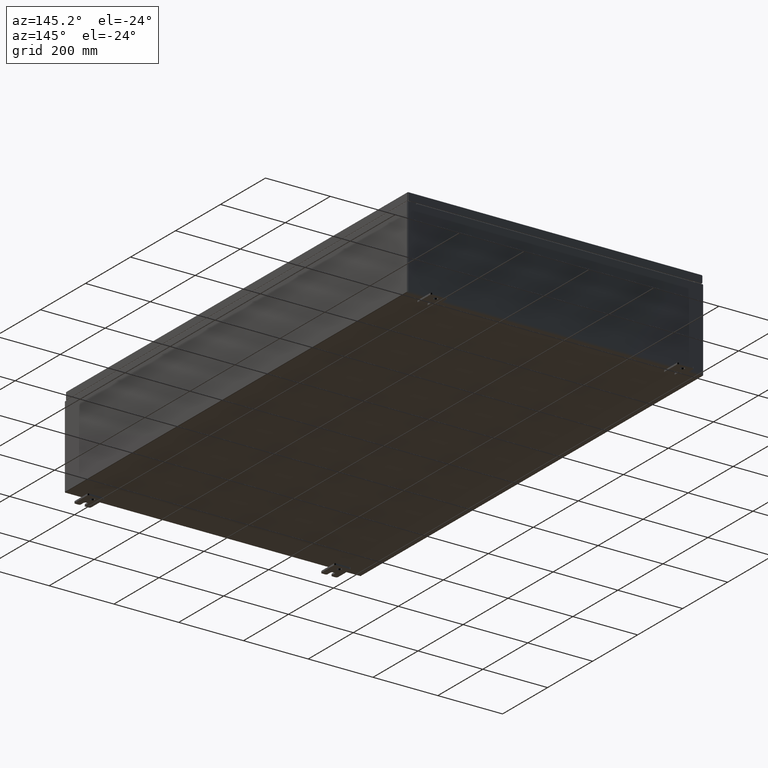
[diagram: clean part render]
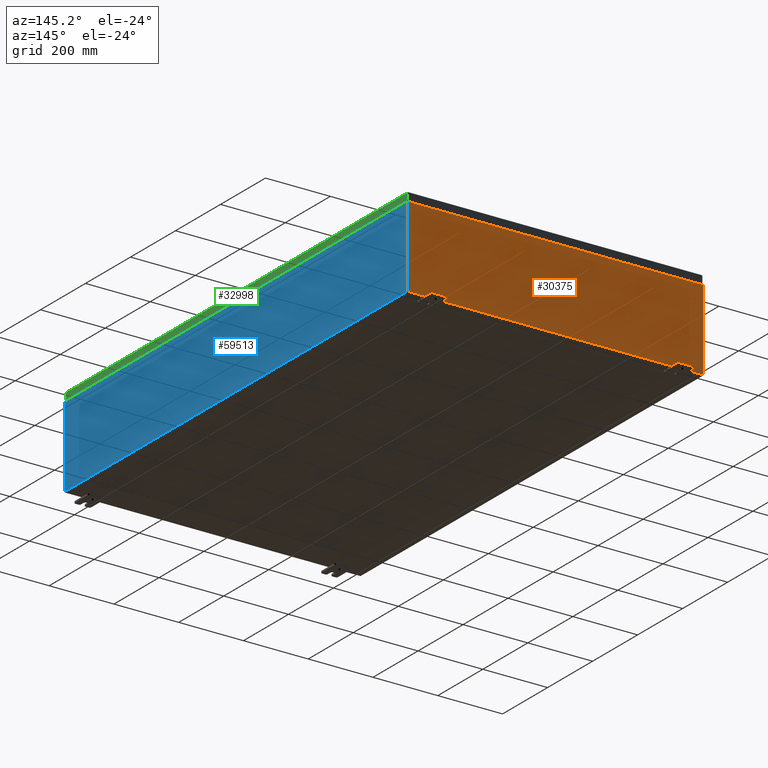
[diagram: same view with three faces highlighted in distinct colors, each labeled with its STEP entity id]
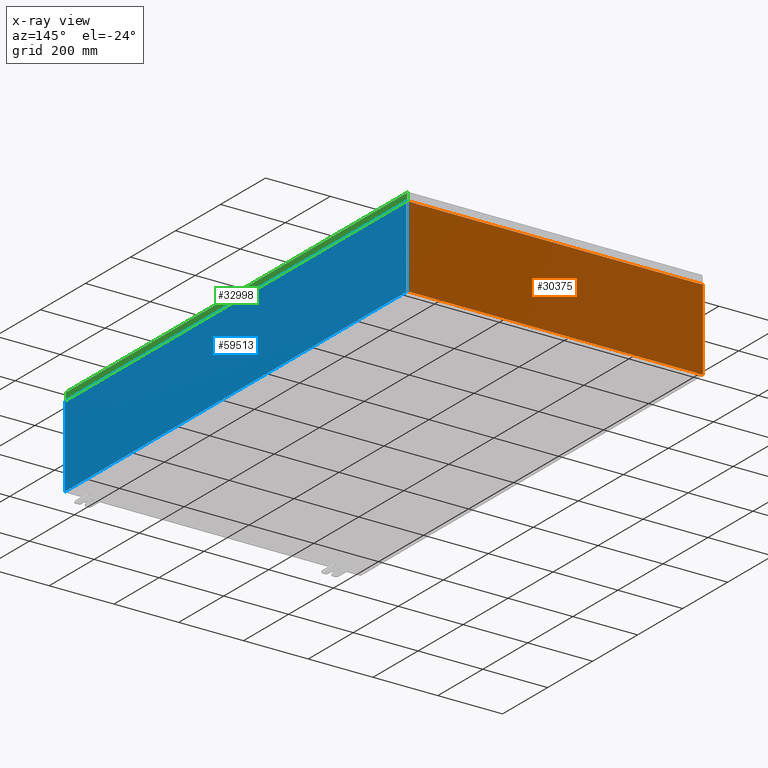
[diagram: x-ray of the same camera — body ghosted, the three highlighted faces saturated]
A machine part, auxiliary view with three faces highlighted in distinct colors.
The next image is the same camera in x-ray (body ghosted, the three faces saturated) — at least one of them is partly hidden behind the body in this view.
Their STEP definitions:

[orange] entity #30375 — the highlighted planar face has unit normal (0, -1, 0).
#244 = DIRECTION ( 'NONE',  ( 0.0000000000000000000, 0.0000000000000000000, -1.000000000000000000 ) ) ;
#430 = CARTESIAN_POINT ( 'NONE',  ( -16.90587499999999800, 0.0000000000000000000, 4.874950000000000100 ) ) ;
#682 = ORIENTED_EDGE ( 'NONE', *, *, #27018, .T. ) ;
#1021 = ORIENTED_EDGE ( 'NONE', *, *, #57641, .F. ) ;
#1743 = VECTOR ( 'NONE', #11958, 39.37007874015748100 ) ;
#2738 = LINE ( 'NONE', #51184, #29590 ) ;
#4131 = LINE ( 'NONE', #18016, #61019 ) ;
#4807 = VERTEX_POINT ( 'NONE', #43683 ) ;
#5879 = DIRECTION ( 'NONE',  ( 0.0000000000000000000, 0.0000000000000000000, -1.000000000000000000 ) ) ;
#6390 = CARTESIAN_POINT ( 'NONE',  ( 16.90587500000000200, 0.0000000000000000000, 4.874950000000000100 ) ) ;
#7542 = ORIENTED_EDGE ( 'NONE', *, *, #38059, .F. ) ;
#8225 = EDGE_CURVE ( 'NONE', #11051, #43048, #31559, .T. ) ;
#10060 = VECTOR ( 'NONE', #66156, 39.37007874015748100 ) ;
#10275 = CARTESIAN_POINT ( 'NONE',  ( -16.92454999999999600, 0.0000000000000000000, 4.925300000000000000 ) ) ;
#11051 = VERTEX_POINT ( 'NONE', #33704 ) ;
#11100 = PLANE ( 'NONE',  #21653 ) ;
#11782 = DIRECTION ( 'NONE',  ( 0.0000000000000000000, 0.0000000000000000000, -1.000000000000000000 ) ) ;
#11958 = DIRECTION ( 'NONE',  ( -1.000000000000000000, -0.0000000000000000000, -0.0000000000000000000 ) ) ;
#13172 = CARTESIAN_POINT ( 'NONE',  ( 16.92454999999957700, -0.0000000000000000000, -1.469244821010341400E-012 ) ) ;
#13229 = VECTOR ( 'NONE', #244, 39.37007874015748100 ) ;
#13272 = VERTEX_POINT ( 'NONE', #59862 ) ;
#13376 = ORIENTED_EDGE ( 'NONE', *, *, #40022, .F. ) ;
#14001 = ORIENTED_EDGE ( 'NONE', *, *, #35163, .T. ) ;
#15641 = DIRECTION ( 'NONE',  ( 1.000000000000000000, 0.0000000000000000000, 0.0000000000000000000 ) ) ;
#17195 = AXIS2_PLACEMENT_3D ( 'NONE', #430, #38005, #5879 ) ;
#17246 = VERTEX_POINT ( 'NONE', #30306 ) ;
#18016 = CARTESIAN_POINT ( 'NONE',  ( -16.92454999999999600, -0.0000000000000000000, 0.0000000000000000000 ) ) ;
#20188 = EDGE_CURVE ( 'NONE', #35445, #46533, #46948, .T. ) ;
#20456 = CARTESIAN_POINT ( 'NONE',  ( -17.92530000000000000, 0.0000000000000000000, 4.925300000000000000 ) ) ;
#20514 = DIRECTION ( 'NONE',  ( 1.000000000000000000, 0.0000000000000000000, 0.0000000000000000000 ) ) ;
#20859 = CARTESIAN_POINT ( 'NONE',  ( -16.88720000000000000, -7.171100983368691200E-016, 4.912300000000000100 ) ) ;
#20902 = LINE ( 'NONE', #31021, #31773 ) ;
#20928 = VERTEX_POINT ( 'NONE', #45210 ) ;
#21653 = AXIS2_PLACEMENT_3D ( 'NONE', #59250, #27259, #64572 ) ;
#21806 = EDGE_CURVE ( 'NONE', #17246, #41975, #24314, .T. ) ;
#22234 = EDGE_CURVE ( 'NONE', #50161, #43048, #69312, .T. ) ;
#22883 = VECTOR ( 'NONE', #15641, 39.37007874015748100 ) ;
#23369 = DIRECTION ( 'NONE',  ( 0.0000000000000000000, 0.0000000000000000000, 1.000000000000000000 ) ) ;
#23480 = CARTESIAN_POINT ( 'NONE',  ( -16.88720000000000000, -7.171100983368691200E-016, 4.912300000000000100 ) ) ;
#24314 = LINE ( 'NONE', #13172, #10060 ) ;
#24532 = DIRECTION ( 'NONE',  ( 0.0000000000000000000, 0.0000000000000000000, -1.000000000000000000 ) ) ;
#24553 = LINE ( 'NONE', #36951, #22883 ) ;
#26407 = CARTESIAN_POINT ( 'NONE',  ( -17.92530000000000000, 0.0000000000000000000, 4.925300000000000000 ) ) ;
#27018 = EDGE_CURVE ( 'NONE', #17246, #13272, #20902, .T. ) ;
#27259 = DIRECTION ( 'NONE',  ( 0.0000000000000000000, -1.000000000000000000, 0.0000000000000000000 ) ) ;
#27483 = LINE ( 'NONE', #64333, #13229 ) ;
#28518 = DIRECTION ( 'NONE',  ( 0.0000000000000000000, 0.0000000000000000000, 1.000000000000000000 ) ) ;
#29590 = VECTOR ( 'NONE', #24532, 39.37007874015748100 ) ;
#30306 = CARTESIAN_POINT ( 'NONE',  ( 16.92455000000000000, 0.0000000000000000000, 4.925300000000000000 ) ) ;
#30375 = ADVANCED_FACE ( 'NONE', ( #42578 ), #11100, .F. ) ;
#31021 = CARTESIAN_POINT ( 'NONE',  ( -17.92530000000000000, 0.0000000000000000000, 4.925300000000000000 ) ) ;
#31559 = LINE ( 'NONE', #40303, #45821 ) ;
#31773 = VECTOR ( 'NONE', #20514, 39.37007874015748100 ) ;
#33277 = CARTESIAN_POINT ( 'NONE',  ( -17.92530000000000000, 0.0000000000000000000, -4.925300000000000000 ) ) ;
#33704 = CARTESIAN_POINT ( 'NONE',  ( 16.88720000000000000, 0.0000000000000000000, 4.874950000000000100 ) ) ;
#33910 = ORIENTED_EDGE ( 'NONE', *, *, #22234, .T. ) ;
#35029 = ORIENTED_EDGE ( 'NONE', *, *, #67240, .T. ) ;
#35163 = EDGE_CURVE ( 'NONE', #46533, #42648, #58064, .T. ) ;
#35445 = VERTEX_POINT ( 'NONE', #39384 ) ;
#36579 = DIRECTION ( 'NONE',  ( 1.000000000000000000, 0.0000000000000000000, 0.0000000000000000000 ) ) ;
#36951 = CARTESIAN_POINT ( 'NONE',  ( -17.92530000000000000, 0.0000000000000000000, 4.925300000000000000 ) ) ;
#37984 = ORIENTED_EDGE ( 'NONE', *, *, #67486, .T. ) ;
#38005 = DIRECTION ( 'NONE',  ( -0.0000000000000000000, 1.000000000000000000, -0.0000000000000000000 ) ) ;
#38059 = EDGE_CURVE ( 'NONE', #4807, #46479, #4131, .T. ) ;
#38142 = EDGE_LOOP ( 'NONE', ( #7542, #51512, #13376, #33910, #57459, #1021, #50391, #682, #35029, #59685, #14001, #37984 ) ) ;
#39384 = CARTESIAN_POINT ( 'NONE',  ( 17.92530000000000000, 0.0000000000000000000, -4.925300000000000000 ) ) ;
#40022 = EDGE_CURVE ( 'NONE', #50161, #20928, #27483, .T. ) ;
#40303 = CARTESIAN_POINT ( 'NONE',  ( 16.88720000000000000, 0.0000000000000000000, 0.0000000000000000000 ) ) ;
#41100 = VECTOR ( 'NONE', #36579, 39.37007874015748100 ) ;
#41975 = VERTEX_POINT ( 'NONE', #63809 ) ;
#42248 = VECTOR ( 'NONE', #63624, 39.37007874015748100 ) ;
#42578 = FACE_OUTER_BOUND ( 'NONE', #38142, .T. ) ;
#42648 = VERTEX_POINT ( 'NONE', #26407 ) ;
#43048 = VERTEX_POINT ( 'NONE', #45329 ) ;
#43683 = CARTESIAN_POINT ( 'NONE',  ( -16.92454999999999600, 0.0000000000000000000, 4.874950000000000100 ) ) ;
#43904 = DIRECTION ( 'NONE',  ( -0.0000000000000000000, 1.000000000000000000, -0.0000000000000000000 ) ) ;
#45210 = CARTESIAN_POINT ( 'NONE',  ( -16.88720000000000000, -0.0000000000000000000, 4.874950000000000100 ) ) ;
#45329 = CARTESIAN_POINT ( 'NONE',  ( 16.88720000000000000, 0.0000000000000000000, 4.912300000000000100 ) ) ;
#45821 = VECTOR ( 'NONE', #28518, 39.37007874015748100 ) ;
#46479 = VERTEX_POINT ( 'NONE', #10275 ) ;
#46533 = VERTEX_POINT ( 'NONE', #58664 ) ;
#46948 = LINE ( 'NONE', #33277, #1743 ) ;
#47816 = CIRCLE ( 'NONE', #56490, 0.01867499999999949400 ) ;
#50161 = VERTEX_POINT ( 'NONE', #23480 ) ;
#50391 = ORIENTED_EDGE ( 'NONE', *, *, #21806, .F. ) ;
#51184 = CARTESIAN_POINT ( 'NONE',  ( 17.92530000000000000, 0.0000000000000000000, 4.925300000000000000 ) ) ;
#51512 = ORIENTED_EDGE ( 'NONE', *, *, #60934, .F. ) ;
#56490 = AXIS2_PLACEMENT_3D ( 'NONE', #6390, #43904, #11782 ) ;
#57459 = ORIENTED_EDGE ( 'NONE', *, *, #8225, .F. ) ;
#57641 = EDGE_CURVE ( 'NONE', #41975, #11051, #47816, .T. ) ;
#58064 = LINE ( 'NONE', #20456, #42248 ) ;
#58664 = CARTESIAN_POINT ( 'NONE',  ( -17.92530000000000000, 0.0000000000000000000, -4.925300000000000000 ) ) ;
#59250 = CARTESIAN_POINT ( 'NONE',  ( 0.0000000000000000000, 0.0000000000000000000, 0.0000000000000000000 ) ) ;
#59685 = ORIENTED_EDGE ( 'NONE', *, *, #20188, .T. ) ;
#59862 = CARTESIAN_POINT ( 'NONE',  ( 17.92530000000000000, 0.0000000000000000000, 4.925300000000000000 ) ) ;
#60934 = EDGE_CURVE ( 'NONE', #20928, #4807, #65076, .T. ) ;
#61019 = VECTOR ( 'NONE', #23369, 39.37007874015748100 ) ;
#63624 = DIRECTION ( 'NONE',  ( -0.0000000000000000000, -0.0000000000000000000, 1.000000000000000000 ) ) ;
#63809 = CARTESIAN_POINT ( 'NONE',  ( 16.92455000000000000, 0.0000000000000000000, 4.874950000000000100 ) ) ;
#64333 = CARTESIAN_POINT ( 'NONE',  ( -16.88720000000000000, -0.0000000000000000000, 0.0000000000000000000 ) ) ;
#64572 = DIRECTION ( 'NONE',  ( 0.0000000000000000000, -0.0000000000000000000, -1.000000000000000000 ) ) ;
#65076 = CIRCLE ( 'NONE', #17195, 0.01867499999999949400 ) ;
#66156 = DIRECTION ( 'NONE',  ( -8.681145560800009800E-014, 0.0000000000000000000, -1.000000000000000000 ) ) ;
#67240 = EDGE_CURVE ( 'NONE', #13272, #35445, #2738, .T. ) ;
#67486 = EDGE_CURVE ( 'NONE', #42648, #46479, #24553, .T. ) ;
#69312 = LINE ( 'NONE', #20859, #41100 ) ;

[blue] entity #59513 — the highlighted planar face has unit normal (-1, 0, 0).
#1584 = PLANE ( 'NONE',  #39135 ) ;
#3887 = CARTESIAN_POINT ( 'NONE',  ( 17.99999999999999600, -29.92530000000001100, 0.01299999999999984700 ) ) ;
#10059 = CARTESIAN_POINT ( 'NONE',  ( 17.99999999999999600, -29.92530000000001100, -6.367630515150755500E-014 ) ) ;
#12420 = DIRECTION ( 'NONE',  ( 3.523082860860887800E-015, 0.0000000000000000000, 1.000000000000000000 ) ) ;
#13473 = CARTESIAN_POINT ( 'NONE',  ( 18.00000000000003200, -29.92530000000001100, 9.837600000000000100 ) ) ;
#13556 = VERTEX_POINT ( 'NONE', #51130 ) ;
#14327 = VECTOR ( 'NONE', #20059, 39.37007874015748100 ) ;
#15299 = EDGE_LOOP ( 'NONE', ( #43472, #18920, #60532, #36713 ) ) ;
#15490 = DIRECTION ( 'NONE',  ( -3.523082860860888200E-015, 0.0000000000000000000, -1.000000000000000000 ) ) ;
#15607 = CARTESIAN_POINT ( 'NONE',  ( 18.00000000000003600, 29.92529999999999300, 9.837599999999993000 ) ) ;
#15885 = LINE ( 'NONE', #15607, #55155 ) ;
#18920 = ORIENTED_EDGE ( 'NONE', *, *, #25830, .T. ) ;
#19297 = LINE ( 'NONE', #10059, #46100 ) ;
#20059 = DIRECTION ( 'NONE',  ( -0.0000000000000000000, -1.000000000000000000, -0.0000000000000000000 ) ) ;
#25777 = CARTESIAN_POINT ( 'NONE',  ( 18.00000000000003600, 29.92529999999999300, 9.837599999999993000 ) ) ;
#25830 = EDGE_CURVE ( 'NONE', #43072, #47478, #19297, .T. ) ;
#27161 = EDGE_CURVE ( 'NONE', #40630, #43072, #15885, .T. ) ;
#28287 = LINE ( 'NONE', #68183, #37519 ) ;
#28353 = CARTESIAN_POINT ( 'NONE',  ( 17.99999999999999600, 0.0000000000000000000, -6.367630515150755500E-014 ) ) ;
#28561 = LINE ( 'NONE', #3887, #14327 ) ;
#36713 = ORIENTED_EDGE ( 'NONE', *, *, #40577, .T. ) ;
#37519 = VECTOR ( 'NONE', #57548, 39.37007874015748100 ) ;
#38530 = FACE_OUTER_BOUND ( 'NONE', #15299, .T. ) ;
#39135 = AXIS2_PLACEMENT_3D ( 'NONE', #28353, #44525, #12420 ) ;
#40577 = EDGE_CURVE ( 'NONE', #13556, #40630, #28287, .T. ) ;
#40630 = VERTEX_POINT ( 'NONE', #25777 ) ;
#43072 = VERTEX_POINT ( 'NONE', #13473 ) ;
#43472 = ORIENTED_EDGE ( 'NONE', *, *, #27161, .T. ) ;
#44525 = DIRECTION ( 'NONE',  ( -1.000000000000000000, 0.0000000000000000000, 3.523082860860887800E-015 ) ) ;
#46100 = VECTOR ( 'NONE', #15490, 39.37007874015748100 ) ;
#47478 = VERTEX_POINT ( 'NONE', #65167 ) ;
#48945 = EDGE_CURVE ( 'NONE', #13556, #47478, #28561, .T. ) ;
#51130 = CARTESIAN_POINT ( 'NONE',  ( 17.99999999999999600, 29.92529999999999300, 0.01299999999999984700 ) ) ;
#53234 = DIRECTION ( 'NONE',  ( -0.0000000000000000000, -1.000000000000000000, -0.0000000000000000000 ) ) ;
#55155 = VECTOR ( 'NONE', #53234, 39.37007874015748100 ) ;
#57548 = DIRECTION ( 'NONE',  ( 3.523082860860888200E-015, 0.0000000000000000000, 1.000000000000000000 ) ) ;
#59513 = ADVANCED_FACE ( 'NONE', ( #38530 ), #1584, .F. ) ;
#60532 = ORIENTED_EDGE ( 'NONE', *, *, #48945, .F. ) ;
#65167 = CARTESIAN_POINT ( 'NONE',  ( 17.99999999999999600, -29.92530000000001100, 0.01299999999999984300 ) ) ;
#68183 = CARTESIAN_POINT ( 'NONE',  ( 17.99999999999999600, 29.92529999999998900, -6.367630515150755500E-014 ) ) ;

[green] entity #32998 — the highlighted planar face has unit normal (1, 0, 0).
#1697 = DIRECTION ( 'NONE',  ( 2.532419924601866100E-015, 0.0000000000000000000, -1.000000000000000000 ) ) ;
#8378 = VECTOR ( 'NONE', #22981, 39.37007874015748100 ) ;
#8602 = VERTEX_POINT ( 'NONE', #36687 ) ;
#10333 = ORIENTED_EDGE ( 'NONE', *, *, #59747, .T. ) ;
#12697 = EDGE_LOOP ( 'NONE', ( #13163, #57383, #39544, #10333 ) ) ;
#13163 = ORIENTED_EDGE ( 'NONE', *, *, #37393, .F. ) ;
#13737 = DIRECTION ( 'NONE',  ( 0.0000000000000000000, -1.000000000000000000, 0.0000000000000000000 ) ) ;
#17556 = VECTOR ( 'NONE', #13737, 39.37007874015748100 ) ;
#18768 = VECTOR ( 'NONE', #36616, 39.37007874015748100 ) ;
#19221 = LINE ( 'NONE', #40446, #17556 ) ;
#20198 = AXIS2_PLACEMENT_3D ( 'NONE', #60424, #33857, #1697 ) ;
#22628 = LINE ( 'NONE', #23433, #8378 ) ;
#22981 = DIRECTION ( 'NONE',  ( -2.532419924601866100E-015, -6.982962677686269100E-015, 1.000000000000000000 ) ) ;
#23170 = DIRECTION ( 'NONE',  ( -2.532419924601866100E-015, -6.982962677686269100E-015, 1.000000000000000000 ) ) ;
#23433 = CARTESIAN_POINT ( 'NONE',  ( 17.93750000000000000, -29.84865786437626100, -0.07469999999999980800 ) ) ;
#28463 = PLANE ( 'NONE',  #20198 ) ;
#32806 = VERTEX_POINT ( 'NONE', #42101 ) ;
#32998 = ADVANCED_FACE ( 'NONE', ( #68147 ), #28463, .T. ) ;
#33857 = DIRECTION ( 'NONE',  ( 1.000000000000000000, 0.0000000000000000000, 2.532419924601866100E-015 ) ) ;
#36616 = DIRECTION ( 'NONE',  ( 0.0000000000000000000, -1.000000000000000000, 0.0000000000000000000 ) ) ;
#36687 = CARTESIAN_POINT ( 'NONE',  ( 17.93750000000000000, -29.84865786437626100, -0.08770000000000008300 ) ) ;
#37393 = EDGE_CURVE ( 'NONE', #59312, #8602, #22628, .T. ) ;
#39544 = ORIENTED_EDGE ( 'NONE', *, *, #47612, .T. ) ;
#40446 = CARTESIAN_POINT ( 'NONE',  ( 17.93750000000000000, 0.0000000000000000000, -0.08770000000000008300 ) ) ;
#42101 = CARTESIAN_POINT ( 'NONE',  ( 17.93750000000000000, 29.84865786437627800, -0.9376999999999997600 ) ) ;
#44515 = CARTESIAN_POINT ( 'NONE',  ( 17.93750000000000000, 29.84865786437627500, 2.541181598995237700E-013 ) ) ;
#47612 = EDGE_CURVE ( 'NONE', #32806, #58390, #51222, .T. ) ;
#49572 = VECTOR ( 'NONE', #23170, 39.37007874015748100 ) ;
#51222 = LINE ( 'NONE', #44515, #49572 ) ;
#54137 = EDGE_CURVE ( 'NONE', #32806, #59312, #59693, .T. ) ;
#57383 = ORIENTED_EDGE ( 'NONE', *, *, #54137, .F. ) ;
#58390 = VERTEX_POINT ( 'NONE', #63223 ) ;
#59312 = VERTEX_POINT ( 'NONE', #64741 ) ;
#59693 = LINE ( 'NONE', #68449, #18768 ) ;
#59747 = EDGE_CURVE ( 'NONE', #58390, #8602, #19221, .T. ) ;
#60424 = CARTESIAN_POINT ( 'NONE',  ( 17.93750000000000000, 0.0000000000000000000, 4.568609605355755400E-014 ) ) ;
#63223 = CARTESIAN_POINT ( 'NONE',  ( 17.93750000000000000, 29.84865786437627500, -0.08770000000000008300 ) ) ;
#64741 = CARTESIAN_POINT ( 'NONE',  ( 17.93750000000000000, -29.84865786437625700, -0.9376999999999996400 ) ) ;
#68147 = FACE_OUTER_BOUND ( 'NONE', #12697, .T. ) ;
#68449 = CARTESIAN_POINT ( 'NONE',  ( 17.93750000000000000, -29.93749999999998900, -0.9376999999999997600 ) ) ;